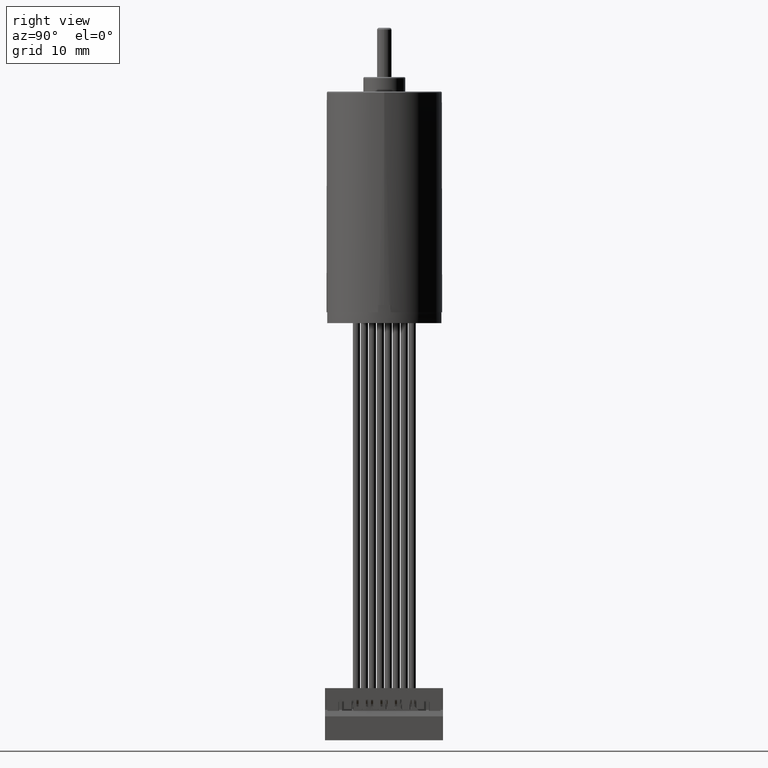
[diagram: clean part render]
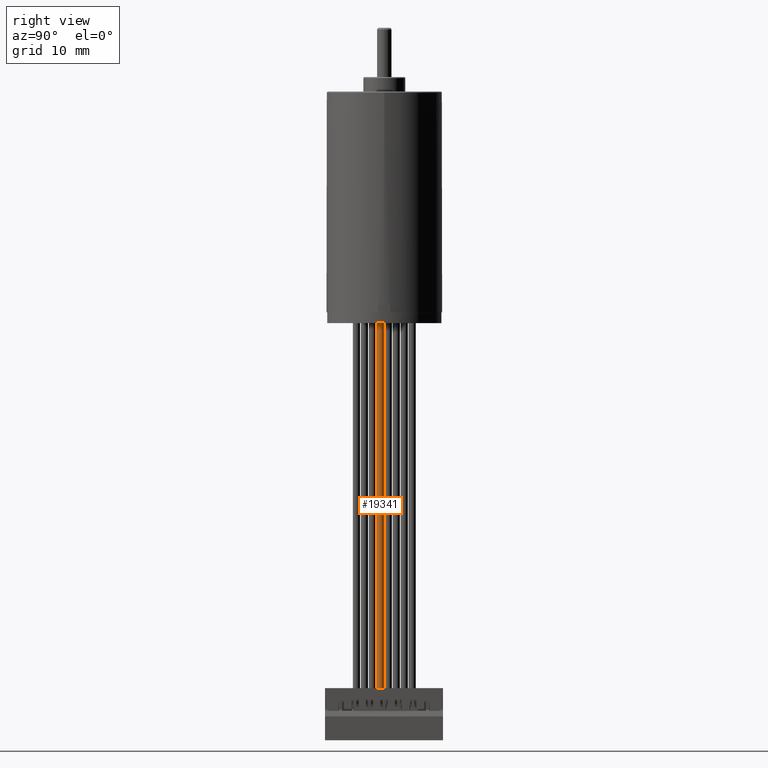
[diagram: same view with one face highlighted and labeled with its STEP entity id]
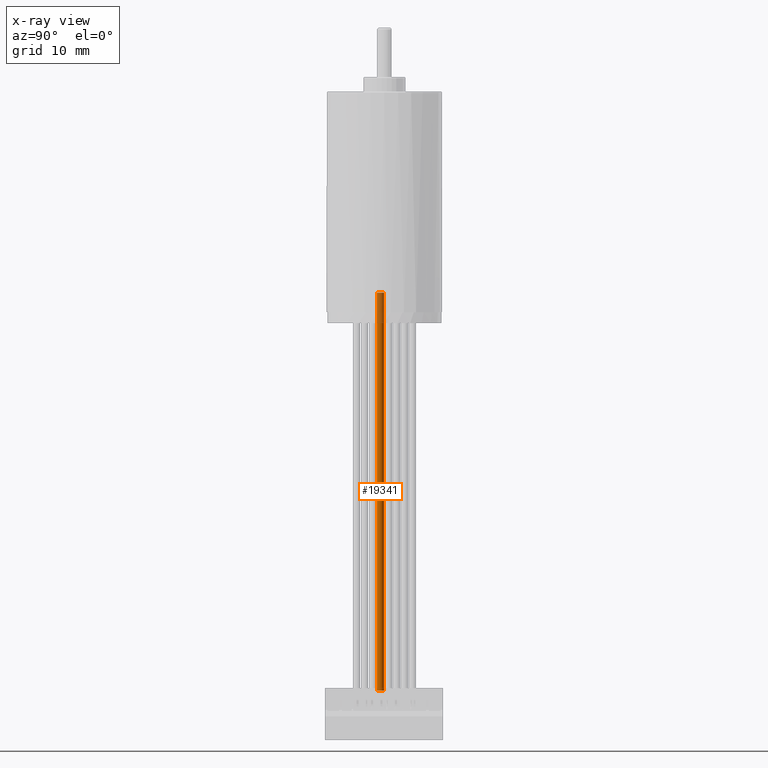
[diagram: x-ray of the same camera — body ghosted, the highlighted face saturated]
A machine part, right view. The second image highlights one B-rep face of the part: STEP entity #19341.
The next image is the same camera in x-ray: the body ghosted, the highlighted face saturated — about 8% of this face is hidden behind the body in this view.
In plain terms, the highlighted cylindrical surface (edge-blend (fillet) strip) has radius 0.5 mm, axis along (0, 0, -1).
Its self-contained STEP definition (entity closure, byte-faithful):
#17923=CARTESIAN_POINT('',(1.2E0,3.8E0,-5.5E-1));
#17924=DIRECTION('',(1.E0,0.E0,0.E0));
#17925=DIRECTION('',(0.E0,0.E0,1.E0));
#17926=AXIS2_PLACEMENT_3D('',#17923,#17924,#17925);
#18089=CARTESIAN_POINT('',(5.62E1,3.8E0,-5.5E-1));
#18090=DIRECTION('',(1.E0,0.E0,0.E0));
#18091=DIRECTION('',(0.E0,0.E0,1.E0));
#18092=AXIS2_PLACEMENT_3D('',#18089,#18090,#18091);
#18228=DIRECTION('',(1.E0,0.E0,0.E0));
#18229=VECTOR('',#18228,5.5E1);
#18230=CARTESIAN_POINT('',(1.2E0,3.8E0,-1.05E0));
#18231=LINE('',#18230,#18229);
#18232=DIRECTION('',(1.E0,0.E0,0.E0));
#18233=VECTOR('',#18232,5.5E1);
#18234=CARTESIAN_POINT('',(1.2E0,3.8E0,-5.E-2));
#18235=LINE('',#18234,#18233);
#18620=CARTESIAN_POINT('',(5.62E1,3.8E0,-1.05E0));
#18621=CARTESIAN_POINT('',(5.62E1,3.8E0,-5.E-2));
#18622=VERTEX_POINT('',#18620);
#18623=VERTEX_POINT('',#18621);
#18652=CARTESIAN_POINT('',(1.2E0,3.8E0,-1.05E0));
#18653=CARTESIAN_POINT('',(1.2E0,3.8E0,-5.E-2));
#18654=VERTEX_POINT('',#18652);
#18655=VERTEX_POINT('',#18653);
#19330=CARTESIAN_POINT('',(0.E0,3.8E0,-5.5E-1));
#19331=DIRECTION('',(1.E0,0.E0,0.E0));
#19332=DIRECTION('',(0.E0,0.E0,-1.E0));
#19333=AXIS2_PLACEMENT_3D('',#19330,#19331,#19332);
#19334=CYLINDRICAL_SURFACE('',#19333,5.E-1);
#19335=ORIENTED_EDGE('',*,*,#18889,.F.);
#19336=ORIENTED_EDGE('',*,*,#19325,.T.);
#19337=ORIENTED_EDGE('',*,*,#19173,.T.);
#19338=ORIENTED_EDGE('',*,*,#19322,.F.);
#19339=EDGE_LOOP('',(#19335,#19336,#19337,#19338));
#19340=FACE_OUTER_BOUND('',#19339,.F.);
#19341=ADVANCED_FACE('',(#19340),#19334,.T.);
#17927=CIRCLE('',#17926,5.E-1);
#18093=CIRCLE('',#18092,5.E-1);
#18889=EDGE_CURVE('',#18655,#18654,#17927,.T.);
#19173=EDGE_CURVE('',#18623,#18622,#18093,.T.);
#19322=EDGE_CURVE('',#18654,#18622,#18231,.T.);
#19325=EDGE_CURVE('',#18655,#18623,#18235,.T.);